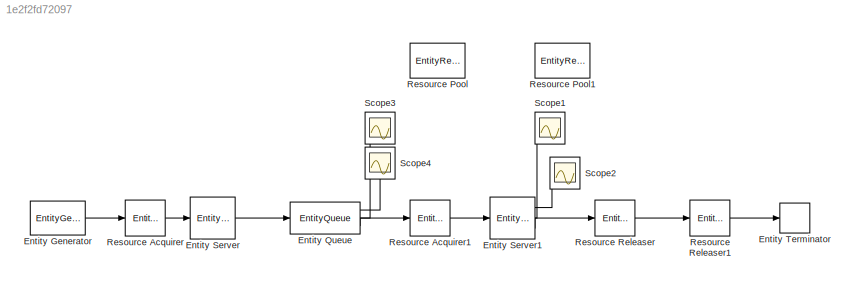
MODEL slx_1e2f2fd72097
KIND model
CONFIG AbsTol = auto
CONFIG FixedStep = auto
CONFIG MaxStep = auto
CONFIG MinStep = auto
CONFIG RelTol = 1e-3
CONFIG SampleTimeConstraint = Unconstrained
CONFIG Solver = VariableStepDiscrete
CONFIG SolverMode = Auto
CONFIG SolverName = VariableStepDiscrete
CONFIG StartTime = 0.0
CONFIG StopTime = 2400
BLOCK [EntityGenerator] Entity Generator
  EntityType = Structured
  EntityTypeName = Entity
  IntergenerationTimeAction = persistent count\nif(isempty(count))\n    count = 1;\nend\nif(count < 5)\n    dt = 0;\n    count = count + 1;\nelse\n    dt = inf;\nend
  OutputPortMap = o3
  OutputPortMessageModes = m
  Ports = [0, 1]
  TimeSource = MATLAB action
BLOCK [EntityQueue] Entity Queue
  AverageWait = on
  InputPortMap = u0
  InputPortMessageModes = m
  NumberEntitiesInBlock = on
  OutputPortMap = o1,o2,o5
  OutputPortMessageModes = n,n,m
  Ports = [1, 3]
BLOCK [EntityServer] Entity Server
  Capacity = 4
  InputPortMap = u2
  InputPortMessageModes = m
  OutputPortMap = o9
  OutputPortMessageModes = m
  Ports = [1, 1]
  ServiceTimeAction = dt = 25 + rand * 10;
  ServiceTimeSource = MATLAB action
BLOCK [EntityServer] Entity Server1
  AverageWait = on
  Capacity = 1
  InputPortMap = u2
  InputPortMessageModes = m
  OutputPortMap = o4,o5,o9
  OutputPortMessageModes = n,n,m
  Ports = [1, 3]
  ServiceTimeAction = dt = 6 + rand * 4;
  ServiceTimeSource = MATLAB action
  Utilization = on
BLOCK [EntityTerminator] Entity Terminator
  InputPortMap = u0
  InputPortMessageModes = m
  Ports = [1]
BLOCK [EntityResourceAcquirer] Resource Acquirer
  InputPortMap = u0
  InputPortMessageModes = m
  NumberWaitingEntities = 5
  OutputPortMap = o3
  OutputPortMessageModes = m
  Ports = [1, 1]
  ResourceName = Muncitori
BLOCK [EntityResourceAcquirer] Resource Acquirer1
  InputPortMap = u0
  InputPortMessageModes = m
  NumberWaitingEntities = 5
  OutputPortMap = o3
  OutputPortMessageModes = m
  Ports = [1, 1]
  ResourceName = Cuptor
BLOCK [EntityResourcePool] Resource Pool
  Ports = []
  ResourceAmount = 4
  ResourceName = Muncitori
BLOCK [EntityResourcePool] Resource Pool1
  Ports = []
  ResourceAmount = 1
  ResourceName = Cuptor
BLOCK [EntityResourceReleaser] Resource Releaser
  InputPortMap = u0
  InputPortMessageModes = m
  OutputPortMap = o0
  OutputPortMessageModes = m
  Ports = [1, 1]
  ResourceName = Cuptor
  ResourceToRelease = Selected
BLOCK [EntityResourceReleaser] Resource Releaser1
  InputPortMap = u0
  InputPortMessageModes = m
  OutputPortMap = o0
  OutputPortMessageModes = m
  Ports = [1, 1]
  ResourceName = Muncitori
  ResourceToRelease = Selected
BLOCK [Scope] Scope1
  Ports = [1]
  ScopeSpecificationString = Simulink.scopes.TimeScopeBlockCfg('CurrentConfiguration', extmgr.ConfigurationSet(extmgr.Configuration('Core','General UI',true),extmgr.Configuration('Core','Source UI',true),extmgr.Configuration('Sources','WiredSimulink',true,'DataLoggingLimitDataPoints',true,'DataLoggingSaveFormat','Array','DataLoggingDecimation','1','DataLoggingDecimateData',true,'DataLoggingVariableName','ScopeData1'),extmgr.C...<+1523ch>
BLOCK [Scope] Scope2
  Ports = [1]
  ScopeSpecificationString = Simulink.scopes.TimeScopeBlockCfg('CurrentConfiguration', extmgr.ConfigurationSet(extmgr.Configuration('Core','General UI',true),extmgr.Configuration('Core','Source UI',true),extmgr.Configuration('Sources','WiredSimulink',true,'DataLoggingLimitDataPoints',true,'DataLoggingSaveFormat','Array','DataLoggingDecimation','1','DataLoggingDecimateData',true),extmgr.Configuration('Visuals','Time Domain',tr...<+1484ch>
BLOCK [Scope] Scope3
  Ports = [1]
  ScopeSpecificationString = Simulink.scopes.TimeScopeBlockCfg('CurrentConfiguration', extmgr.ConfigurationSet(extmgr.Configuration('Core','General UI',true),extmgr.Configuration('Core','Source UI',true),extmgr.Configuration('Sources','WiredSimulink',true,'DataLoggingLimitDataPoints',true,'DataLoggingSaveFormat','Array','DataLoggingDecimation','1','DataLoggingDecimateData',true,'DataLoggingVariableName','ScopeData2'),extmgr.C...<+1523ch>
BLOCK [Scope] Scope4
  Ports = [1]
  ScopeSpecificationString = Simulink.scopes.TimeScopeBlockCfg('CurrentConfiguration', extmgr.ConfigurationSet(extmgr.Configuration('Core','General UI',true),extmgr.Configuration('Core','Source UI',true),extmgr.Configuration('Sources','WiredSimulink',true,'DataLoggingLimitDataPoints',true,'DataLoggingSaveFormat','Array','DataLoggingDecimation','1','DataLoggingDecimateData',true,'DataLoggingVariableName','ScopeData3'),extmgr.C...<+1523ch>
LINE Entity Generator:1 -> Resource Acquirer:1
LINE Entity Queue:1 -> Scope4:1
LINE Entity Queue:2 -> Scope3:1
LINE Entity Queue:3 -> Resource Acquirer1:1
LINE Entity Server1:1 -> Scope2:1
LINE Entity Server1:2 -> Scope1:1
LINE Entity Server1:3 -> Resource Releaser:1
LINE Entity Server:1 -> Entity Queue:1
LINE Resource Acquirer1:1 -> Entity Server1:1
LINE Resource Acquirer:1 -> Entity Server:1
LINE Resource Releaser1:1 -> Entity Terminator:1
LINE Resource Releaser:1 -> Resource Releaser1:1
